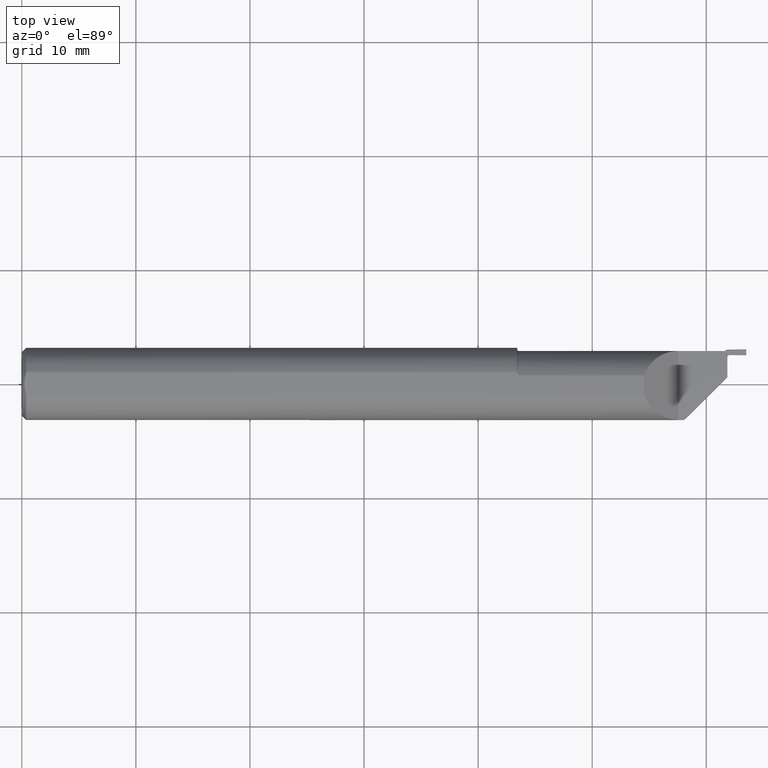
[diagram: clean part render]
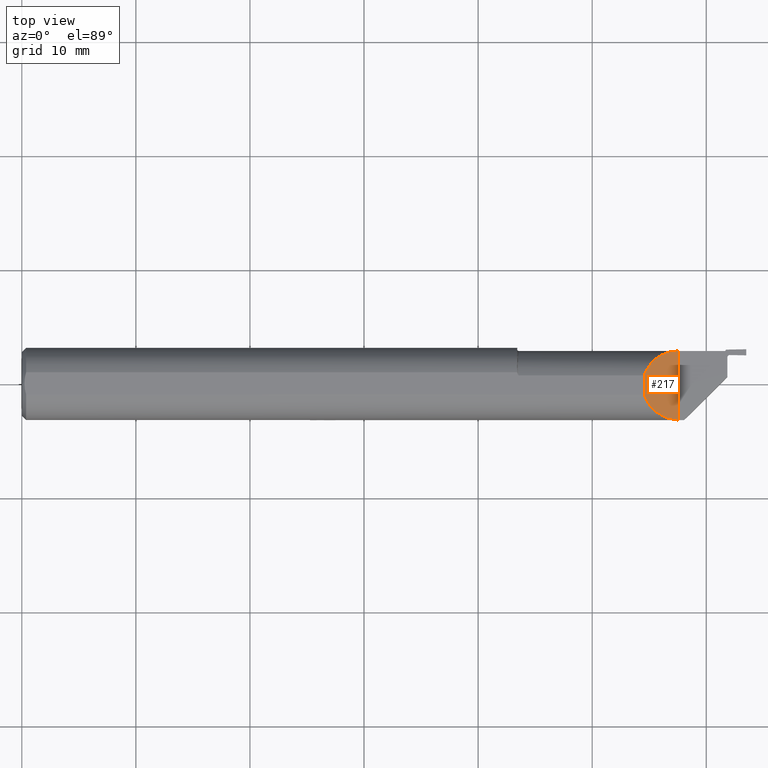
[diagram: same view with one face highlighted and labeled with its STEP entity id]
A machine part, top view. The second image highlights one B-rep face of the part: STEP entity #217.
In plain terms, the highlighted planar face has unit normal (0.7071, -0, 0.7071).
Its self-contained STEP definition (entity closure, byte-faithful):
#52 = LINE ( 'NONE', #328, #279 ) ;
#57 = EDGE_CURVE ( 'NONE', #338, #90, #780, .T. ) ;
#61 = VERTEX_POINT ( 'NONE', #151 ) ;
#90 = VERTEX_POINT ( 'NONE', #744 ) ;
#98 = CARTESIAN_POINT ( 'NONE',  ( 2.265000000000000124, -0.1248362927998104277, 0.001850000000000442436 ) ) ;
#123 = DIRECTION ( 'NONE',  ( 0.000000000000000000, -1.000000000000000000, 0.000000000000000000 ) ) ;
#131 = EDGE_CURVE ( 'NONE', #90, #61, #810, .T. ) ;
#151 = CARTESIAN_POINT ( 'NONE',  ( 2.265000000000000124, 0.1138355476100341018, 0.001850000000000401670 ) ) ;
#186 = FACE_OUTER_BOUND ( 'NONE', #423, .T. ) ;
#217 = ADVANCED_FACE ( 'NONE', ( #186 ), #232, .T. ) ;
#227 = AXIS2_PLACEMENT_3D ( 'NONE', #691, #505, #851 ) ;
#232 = PLANE ( 'NONE',  #227 ) ;
#279 = VECTOR ( 'NONE', #123, 39.37007874015748143 ) ;
#302 = ORIENTED_EDGE ( 'NONE', *, *, #466, .F. ) ;
#328 = CARTESIAN_POINT ( 'NONE',  ( 2.265000000000000124, -0.03823872382811423914, 0.001850000000000401670 ) ) ;
#338 = VERTEX_POINT ( 'NONE', #741 ) ;
#380 = CARTESIAN_POINT ( 'NONE',  ( 2.265000000000000124, -0.1248362927998104277, 0.001850000000000442436 ) ) ;
#423 = EDGE_LOOP ( 'NONE', ( #590, #481, #302, #679 ) ) ;
#446 = VECTOR ( 'NONE', #853, 39.37007874015748143 ) ;
#450 = CARTESIAN_POINT ( 'NONE',  ( 2.148000000000000131, -0.03823872382807772669, 0.1188499999999999973 ) ) ;
#462 = CARTESIAN_POINT ( 'NONE',  ( 2.165141516003344258, 0.08018262773649612041, 0.1017084839966559406 ) ) ;
#466 = EDGE_CURVE ( 'NONE', #766, #338, #682, .T. ) ;
#481 = ORIENTED_EDGE ( 'NONE', *, *, #57, .F. ) ;
#505 = DIRECTION ( 'NONE',  ( 0.7071067811865466846, -0.000000000000000000, 0.7071067811865483499 ) ) ;
#531 = CARTESIAN_POINT ( 'NONE',  ( 2.209676106770552373, 0.1130166643012264355, 0.05717389322944788077 ) ) ;
#538 = CARTESIAN_POINT ( 'NONE',  ( 2.148000000000000131, 0.02757490814094780071, 0.1188499999999999973 ) ) ;
#590 = ORIENTED_EDGE ( 'NONE', *, *, #131, .F. ) ;
#593 = CARTESIAN_POINT ( 'NONE',  ( 2.209554582113422150, -0.1240146245109684658, 0.05729541788657826346 ) ) ;
#679 = ORIENTED_EDGE ( 'NONE', *, *, #866, .F. ) ;
#682 =( BOUNDED_CURVE ( )  B_SPLINE_CURVE ( 3, ( #380, #593, #738, #450 ),
 .UNSPECIFIED., .F., .F. ) 
 B_SPLINE_CURVE_WITH_KNOTS ( ( 4, 4 ),
 ( 4.727207304024301671, 5.971905359455142559 ),
 .UNSPECIFIED. ) 
 CURVE ( )  GEOMETRIC_REPRESENTATION_ITEM ( )  RATIONAL_B_SPLINE_CURVE ( ( 1.000000000000000000, 0.8750075631735800830, 0.8750075631735800830, 1.000000000000000000 ) ) 
 REPRESENTATION_ITEM ( '' )  );
#691 = CARTESIAN_POINT ( 'NONE',  ( 2.265000000000000124, 0.2248499999999999943, 0.001850000000000401670 ) ) ;
#738 = CARTESIAN_POINT ( 'NONE',  ( 2.164983538797464746, -0.09102535957339832895, 0.1018664612025355354 ) ) ;
#741 = CARTESIAN_POINT ( 'NONE',  ( 2.148000000000000131, -0.03823872382807772669, 0.1188499999999999973 ) ) ;
#744 = CARTESIAN_POINT ( 'NONE',  ( 2.148000000000000131, 0.02757490814094780071, 0.1188499999999999973 ) ) ;
#766 = VERTEX_POINT ( 'NONE', #98 ) ;
#780 = LINE ( 'NONE', #785, #446 ) ;
#785 = CARTESIAN_POINT ( 'NONE',  ( 2.148000000000000131, 0.03823872382807772669, 0.1188499999999999973 ) ) ;
#810 =( BOUNDED_CURVE ( )  B_SPLINE_CURVE ( 3, ( #538, #462, #531, #876 ),
 .UNSPECIFIED., .F., .F. ) 
 B_SPLINE_CURVE_WITH_KNOTS ( ( 4, 4 ),
 ( 3.456580965538229577, 4.697588440032756552 ),
 .UNSPECIFIED. ) 
 CURVE ( )  GEOMETRIC_REPRESENTATION_ITEM ( )  RATIONAL_B_SPLINE_CURVE ( ( 1.000000000000000000, 0.8757237762408390802, 0.8757237762408390802, 1.000000000000000000 ) ) 
 REPRESENTATION_ITEM ( '' )  );
#851 = DIRECTION ( 'NONE',  ( 0.7071067811865483499, 0.000000000000000000, -0.7071067811865466846 ) ) ;
#853 = DIRECTION ( 'NONE',  ( -0.000000000000000000, 1.000000000000000000, 0.000000000000000000 ) ) ;
#866 = EDGE_CURVE ( 'NONE', #61, #766, #52, .T. ) ;
#876 = CARTESIAN_POINT ( 'NONE',  ( 2.265000000000000124, 0.1138355476100341018, 0.001850000000000401670 ) ) ;